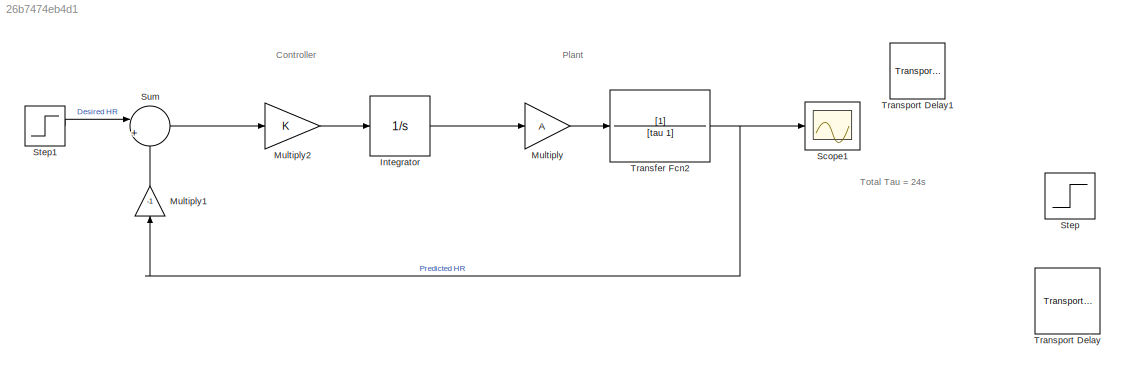
MODEL slx_26b7474eb4d1
KIND model
CONFIG AbsTol = auto
CONFIG EnableMultiTasking = off
CONFIG FixedStep = auto
CONFIG MaxStep = auto
CONFIG MinStep = auto
CONFIG RelTol = 1e-3
CONFIG SampleTimeConstraint = Unconstrained
CONFIG SolverName = VariableStepAuto
CONFIG StartTime = 0.0
CONFIG StopTime = 1000
BLOCK [Integrator] Integrator
BLOCK [Gain] Multiply
  Gain = A
BLOCK [Gain] Multiply1
  Gain = -1
  NameLocation = right
BLOCK [Gain] Multiply2
  Gain = K
BLOCK [Scope] Scope1
  Floating = off
  NumInputPorts = 1
  ScopeSpecificationString = Simulink.scopes.TimeScopeBlockCfg('CurrentConfiguration', extmgr.ConfigurationSet(extmgr.Configuration('Core','General UI',true),extmgr.Configuration('Core','Source UI',true),extmgr.Configuration('Sources','WiredSimulink',true,'DataLoggingVariableName','ScopeData2'),extmgr.Configuration('Visuals','Time Domain',true,'SerializedDisplays',{struct('MinYLimReal','-19.50664','MaxYLimReal','175.55975','Y...<+1410ch>
BLOCK [Step] Step
  After = 170
  Before = 100
  SampleTime = 0
  Time = 30
BLOCK [Step] Step1
  SampleTime = 0
BLOCK [Sum] Sum
  Inputs = |++
BLOCK [TransferFcn] Transfer Fcn2
  Denominator = [tau 1]
BLOCK [TransportDelay] Transport Delay
  DelayTime = 24
BLOCK [TransportDelay] Transport Delay1
  DelayTime = 24
ANNOTATION (root): Controller
ANNOTATION (root): Plant
ANNOTATION (root): Total Tau = 24s
LINE Integrator:1 -> Multiply:1
LINE Multiply1:1 -> Sum:2
LINE Multiply2:1 -> Integrator:1
LINE Multiply:1 -> Transfer Fcn2:1
LINE Step1:1 -> Sum:1
LINE Sum:1 -> Multiply2:1
NET Transfer Fcn2:1 -> Multiply1:1, Scope1:1
note: NET lines group one-source signal fan-out (src -> all destinations, sorted); 1:1 wires keep LINE
